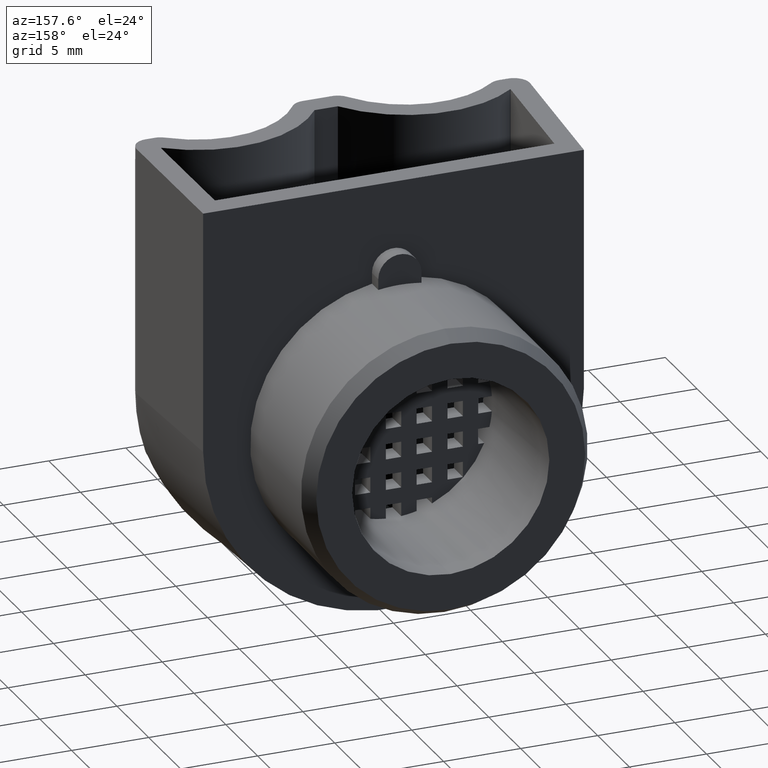
[diagram: clean part render]
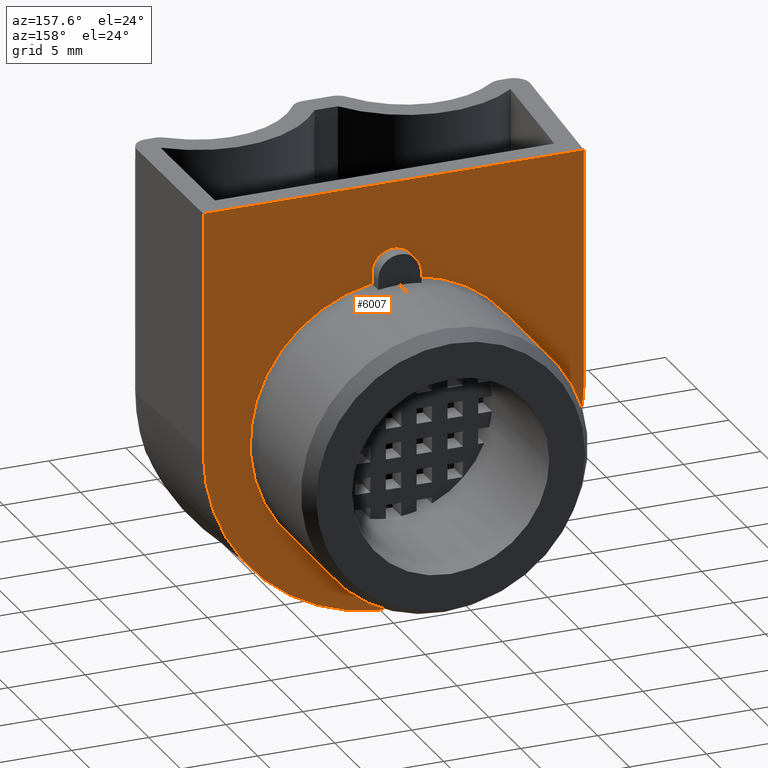
[diagram: same view with one face highlighted and labeled with its STEP entity id]
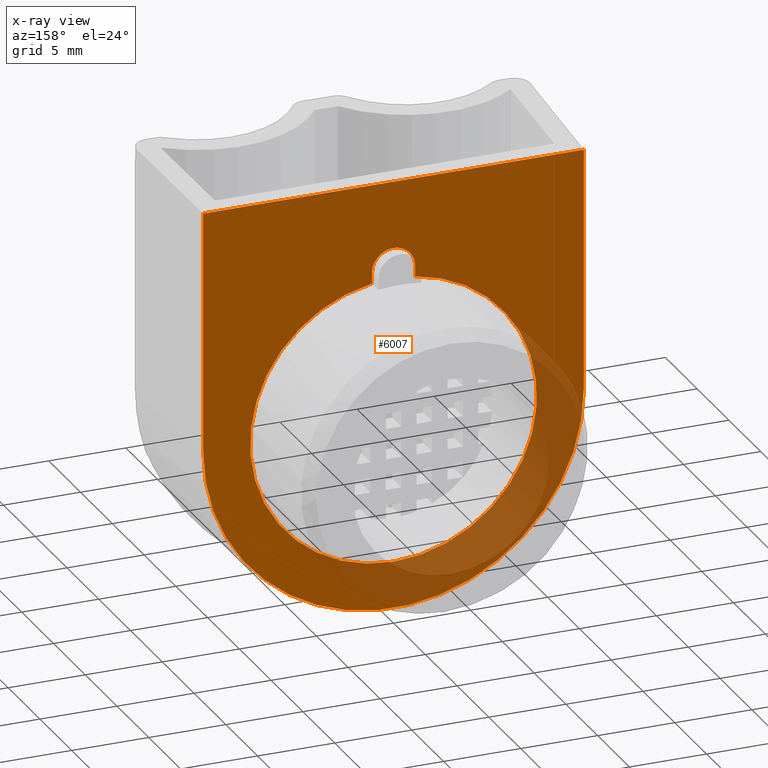
[diagram: x-ray of the same camera — body ghosted, the highlighted face saturated]
A machine part, auxiliary view. The second image highlights one B-rep face of the part: STEP entity #6007.
The next image is the same camera in x-ray: the body ghosted, the highlighted face saturated — about 19% of this face is hidden behind the body in this view.
In plain terms, the highlighted planar face has unit normal (0, 1, -0).
Its self-contained STEP definition (entity closure, byte-faithful):
#51 = CARTESIAN_POINT ( 'NONE',  ( 1.399999999999998600, 0.0000000000000000000, 9.899999999999991500 ) ) ;
#86 = DIRECTION ( 'NONE',  ( 2.220446049250313100E-016, 4.544217445503875200E-016, 1.000000000000000000 ) ) ;
#87 = VECTOR ( 'NONE', #86, 1000.000000000000000 ) ;
#88 = CARTESIAN_POINT ( 'NONE',  ( -12.34999999999999600, -8.326672684688674100E-014, -1.387778780781445700E-014 ) ) ;
#89 = LINE ( 'NONE', #88, #87 ) ;
#90 = CARTESIAN_POINT ( 'NONE',  ( -12.34999999999999600, -8.326672684688674100E-014, -1.387778780781445700E-014 ) ) ;
#91 = DIRECTION ( 'NONE',  ( 2.220446049250313100E-016, 4.544217445503875200E-016, 1.000000000000000000 ) ) ;
#92 = DIRECTION ( 'NONE',  ( 5.622133538114148000E-016, 1.000000000000000000, 4.544217445503873200E-016 ) ) ;
#93 = CARTESIAN_POINT ( 'NONE',  ( -1.734723475976807100E-015, 0.0000000000000000000, -6.938893903907228400E-015 ) ) ;
#94 = AXIS2_PLACEMENT_3D ( 'NONE', #93, #92, #91 ) ;
#95 = CIRCLE ( 'NONE', #94, 12.35000000000000000 ) ;
#96 = DIRECTION ( 'NONE',  ( -2.220446049250313100E-016, -4.544217445503875200E-016, -1.000000000000000000 ) ) ;
#97 = VECTOR ( 'NONE', #96, 1000.000000000000000 ) ;
#98 = CARTESIAN_POINT ( 'NONE',  ( 12.35000000000000300, 0.0000000000000000000, 0.0000000000000000000 ) ) ;
#104 = LINE ( 'NONE', #98, #97 ) ;
#158 = DIRECTION ( 'NONE',  ( 1.000000000000000000, 5.691522477153217300E-016, 2.220446049250311600E-016 ) ) ;
#159 = VECTOR ( 'NONE', #158, 1000.000000000000000 ) ;
#160 = CARTESIAN_POINT ( 'NONE',  ( -12.35000000000000300, 0.0000000000000000000, 15.64999999999999700 ) ) ;
#161 = LINE ( 'NONE', #160, #159 ) ;
#162 = CARTESIAN_POINT ( 'NONE',  ( -12.35000000000000300, 0.0000000000000000000, 15.64999999999999700 ) ) ;
#168 = CARTESIAN_POINT ( 'NONE',  ( -1.550884886533936100E-015, 4.226122224318603000E-015, -9.300000000000007800 ) ) ;
#173 = CARTESIAN_POINT ( 'NONE',  ( 1.400000000000001900, 0.0000000000000000000, 9.194019795497499800 ) ) ;
#202 = CARTESIAN_POINT ( 'NONE',  ( -1.734723475976807100E-015, 0.0000000000000000000, -6.938893903907228400E-015 ) ) ;
#203 = AXIS2_PLACEMENT_3D ( 'NONE', #202, #248, #247 ) ;
#204 = PLANE ( 'NONE',  #203 ) ;
#209 = FACE_BOUND ( 'NONE', #5952, .T. ) ;
#210 = FACE_OUTER_BOUND ( 'NONE', #6008, .T. ) ;
#241 = DIRECTION ( 'NONE',  ( -2.220446049250313600E-016, -4.544217445503875200E-016, -1.000000000000000000 ) ) ;
#242 = DIRECTION ( 'NONE',  ( -5.622133538114148000E-016, -1.000000000000000000, -4.544217445503873200E-016 ) ) ;
#243 = CARTESIAN_POINT ( 'NONE',  ( -1.734723475976807100E-015, 0.0000000000000000000, -6.938893903907228400E-015 ) ) ;
#244 = AXIS2_PLACEMENT_3D ( 'NONE', #243, #242, #241 ) ;
#245 = CIRCLE ( 'NONE', #244, 9.300000000000000700 ) ;
#246 = CARTESIAN_POINT ( 'NONE',  ( 12.35000000000000300, 0.0000000000000000000, 0.0000000000000000000 ) ) ;
#247 = DIRECTION ( 'NONE',  ( 2.220446049250313100E-016, 4.544217445503875200E-016, 1.000000000000000000 ) ) ;
#248 = DIRECTION ( 'NONE',  ( 5.622133538114146000E-016, 1.000000000000000000, -4.544217445503876200E-016 ) ) ;
#274 = DIRECTION ( 'NONE',  ( -2.220446049250313100E-016, -4.544217445503875200E-016, -1.000000000000000000 ) ) ;
#275 = VECTOR ( 'NONE', #274, 1000.000000000000000 ) ;
#276 = CARTESIAN_POINT ( 'NONE',  ( 1.399999999999998600, 0.0000000000000000000, 9.899999999999991500 ) ) ;
#277 = LINE ( 'NONE', #276, #275 ) ;
#337 = DIRECTION ( 'NONE',  ( 2.220446049250310600E-016, 4.544217445503874200E-016, 1.000000000000000000 ) ) ;
#338 = DIRECTION ( 'NONE',  ( 5.622133538114148000E-016, 1.000000000000000000, 4.544217445503873200E-016 ) ) ;
#339 = CARTESIAN_POINT ( 'NONE',  ( 6.938893903907228400E-015, 0.0000000000000000000, 9.899999999999991500 ) ) ;
#340 = AXIS2_PLACEMENT_3D ( 'NONE', #339, #338, #337 ) ;
#341 = CIRCLE ( 'NONE', #340, 1.400000000000000100 ) ;
#342 = CARTESIAN_POINT ( 'NONE',  ( -1.399999999999998600, 0.0000000000000000000, 9.900000000000005700 ) ) ;
#373 = DIRECTION ( 'NONE',  ( 1.276756478318930000E-015, 4.544217445503881100E-016, 1.000000000000000000 ) ) ;
#374 = VECTOR ( 'NONE', #373, 1000.000000000000000 ) ;
#375 = CARTESIAN_POINT ( 'NONE',  ( -1.399999999999998600, 0.0000000000000000000, 9.900000000000005700 ) ) ;
#376 = LINE ( 'NONE', #375, #374 ) ;
#377 = CARTESIAN_POINT ( 'NONE',  ( -1.399999999999998600, 0.0000000000000000000, 9.194019795497512200 ) ) ;
#378 = DIRECTION ( 'NONE',  ( -2.220446049250313600E-016, -4.544217445503875200E-016, -1.000000000000000000 ) ) ;
#379 = DIRECTION ( 'NONE',  ( -5.622133538114148000E-016, -1.000000000000000000, -4.544217445503873200E-016 ) ) ;
#380 = CARTESIAN_POINT ( 'NONE',  ( -1.734723475976807100E-015, 0.0000000000000000000, -6.938893903907228400E-015 ) ) ;
#381 = AXIS2_PLACEMENT_3D ( 'NONE', #380, #379, #378 ) ;
#382 = CIRCLE ( 'NONE', #381, 9.300000000000000700 ) ;
#2749 = CARTESIAN_POINT ( 'NONE',  ( 12.35000000000002100, 0.0000000000000000000, 15.64999999999999700 ) ) ;
#5881 = VERTEX_POINT ( 'NONE', #2749 ) ;
#5889 = ORIENTED_EDGE ( 'NONE', *, *, #5951, .T. ) ;
#5923 = VERTEX_POINT ( 'NONE', #51 ) ;
#5932 = VERTEX_POINT ( 'NONE', #173 ) ;
#5933 = VERTEX_POINT ( 'NONE', #168 ) ;
#5939 = VERTEX_POINT ( 'NONE', #162 ) ;
#5940 = ORIENTED_EDGE ( 'NONE', *, *, #5941, .T. ) ;
#5941 = EDGE_CURVE ( 'NONE', #5939, #5881, #161, .T. ) ;
#5951 = EDGE_CURVE ( 'NONE', #5881, #6010, #104, .T. ) ;
#5952 = EDGE_LOOP ( 'NONE', ( #5953, #6023, #6024, #6079, #6082 ) ) ;
#5953 = ORIENTED_EDGE ( 'NONE', *, *, #6021, .T. ) ;
#5954 = EDGE_CURVE ( 'NONE', #6010, #5955, #95, .T. ) ;
#5955 = VERTEX_POINT ( 'NONE', #90 ) ;
#5956 = ORIENTED_EDGE ( 'NONE', *, *, #5957, .T. ) ;
#5957 = EDGE_CURVE ( 'NONE', #5955, #5939, #89, .T. ) ;
#6007 = ADVANCED_FACE ( 'NONE', ( #210, #209 ), #204, .T. ) ;
#6008 = EDGE_LOOP ( 'NONE', ( #6009, #5956, #5940, #5889 ) ) ;
#6009 = ORIENTED_EDGE ( 'NONE', *, *, #5954, .T. ) ;
#6010 = VERTEX_POINT ( 'NONE', #246 ) ;
#6012 = EDGE_CURVE ( 'NONE', #5933, #5932, #245, .T. ) ;
#6021 = EDGE_CURVE ( 'NONE', #6022, #5933, #382, .T. ) ;
#6022 = VERTEX_POINT ( 'NONE', #377 ) ;
#6023 = ORIENTED_EDGE ( 'NONE', *, *, #6012, .T. ) ;
#6024 = ORIENTED_EDGE ( 'NONE', *, *, #6025, .F. ) ;
#6025 = EDGE_CURVE ( 'NONE', #5923, #5932, #277, .T. ) ;
#6079 = ORIENTED_EDGE ( 'NONE', *, *, #6080, .F. ) ;
#6080 = EDGE_CURVE ( 'NONE', #6081, #5923, #341, .T. ) ;
#6081 = VERTEX_POINT ( 'NONE', #342 ) ;
#6082 = ORIENTED_EDGE ( 'NONE', *, *, #6083, .F. ) ;
#6083 = EDGE_CURVE ( 'NONE', #6022, #6081, #376, .T. ) ;